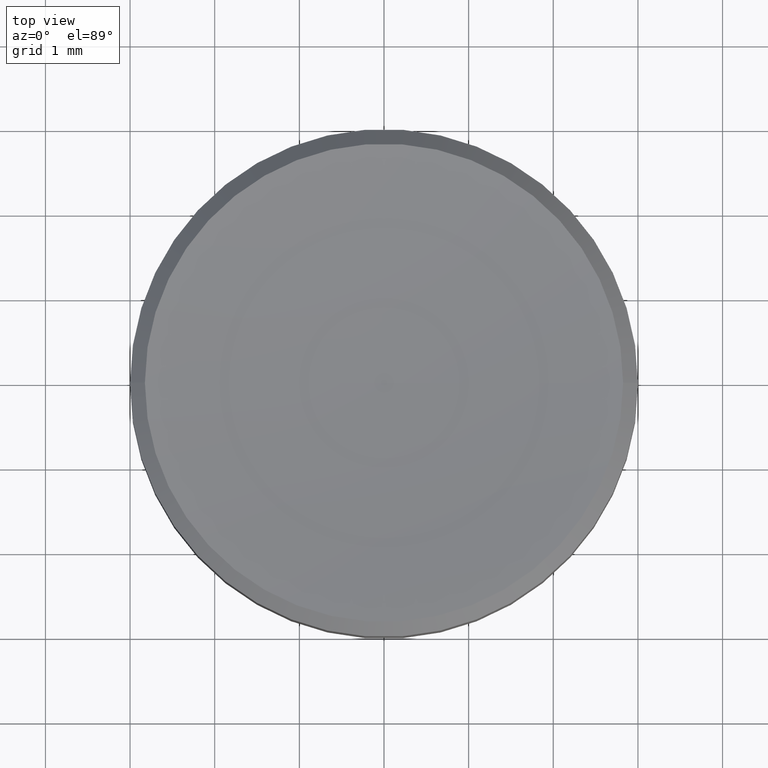
[diagram: clean part render]
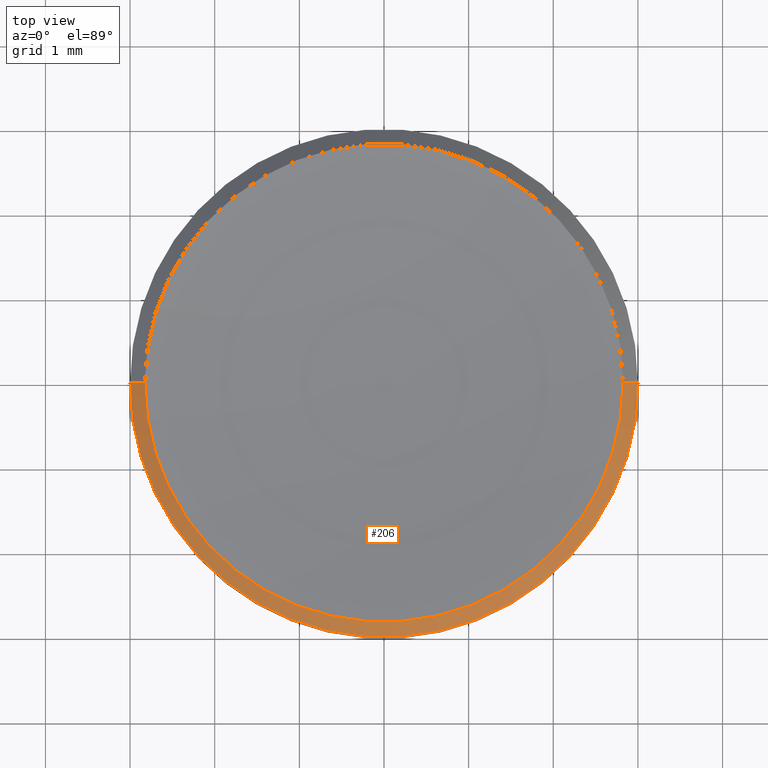
[diagram: same view with one face highlighted and labeled with its STEP entity id]
A machine part, top view. The second image highlights one B-rep face of the part: STEP entity #206.
In plain terms, the highlighted conical surface has half-angle 45 deg.
Its self-contained STEP definition (entity closure, byte-faithful):
#3 = AXIS2_PLACEMENT_3D ( 'NONE', #108, #99, #93 ) ;
#5 = CARTESIAN_POINT ( 'NONE',  ( -2.824988047808448144, 0.000000000000000000, 1.695011952191550986 ) ) ;
#16 = VECTOR ( 'NONE', #129, 1000.000000000000000 ) ;
#20 = AXIS2_PLACEMENT_3D ( 'NONE', #23, #169, #66 ) ;
#23 = CARTESIAN_POINT ( 'NONE',  ( 0.000000000000000000, 0.000000000000000000, 1.519999999999993578 ) ) ;
#24 = LINE ( 'NONE', #5, #73 ) ;
#51 = CARTESIAN_POINT ( 'NONE',  ( 2.824988047808473013, 0.000000000000000000, 1.695011952191558091 ) ) ;
#54 = CARTESIAN_POINT ( 'NONE',  ( -3.000000000000000000, 3.673940397442059868E-16, 1.519999999999993578 ) ) ;
#57 = VERTEX_POINT ( 'NONE', #193 ) ;
#58 = ORIENTED_EDGE ( 'NONE', *, *, #142, .F. ) ;
#62 = ORIENTED_EDGE ( 'NONE', *, *, #89, .F. ) ;
#66 = DIRECTION ( 'NONE',  ( -1.000000000000000000, 0.000000000000000000, 0.000000000000000000 ) ) ;
#73 = VECTOR ( 'NONE', #152, 1000.000000000000000 ) ;
#89 = EDGE_CURVE ( 'NONE', #121, #245, #140, .T. ) ;
#91 = DIRECTION ( 'NONE',  ( -1.000000000000000000, 0.000000000000000000, 0.000000000000000000 ) ) ;
#93 = DIRECTION ( 'NONE',  ( 1.000000000000000000, 0.000000000000000000, 0.000000000000000000 ) ) ;
#98 = CARTESIAN_POINT ( 'NONE',  ( 0.000000000000000000, 0.000000000000000000, 1.695011952191550986 ) ) ;
#99 = DIRECTION ( 'NONE',  ( -0.000000000000000000, -0.000000000000000000, 1.000000000000000000 ) ) ;
#106 = EDGE_CURVE ( 'NONE', #57, #245, #24, .T. ) ;
#108 = CARTESIAN_POINT ( 'NONE',  ( 0.000000000000000000, 0.000000000000000000, 1.695011952191558091 ) ) ;
#121 = VERTEX_POINT ( 'NONE', #150 ) ;
#122 = ORIENTED_EDGE ( 'NONE', *, *, #106, .T. ) ;
#129 = DIRECTION ( 'NONE',  ( 0.7071067811865361374, 8.659560562354792342E-17, -0.7071067811865588970 ) ) ;
#136 = EDGE_CURVE ( 'NONE', #225, #121, #192, .T. ) ;
#140 = CIRCLE ( 'NONE', #20, 3.000000000000000000 ) ;
#142 = EDGE_CURVE ( 'NONE', #57, #225, #242, .T. ) ;
#149 = CARTESIAN_POINT ( 'NONE',  ( 2.824988047808448144, 3.459612570378145558E-16, 1.695011952191550986 ) ) ;
#150 = CARTESIAN_POINT ( 'NONE',  ( 3.000000000000000000, 0.000000000000000000, 1.519999999999993578 ) ) ;
#152 = DIRECTION ( 'NONE',  ( -0.7071067811865361374, 0.000000000000000000, -0.7071067811865588970 ) ) ;
#156 = DIRECTION ( 'NONE',  ( 0.000000000000000000, 0.000000000000000000, -1.000000000000000000 ) ) ;
#166 = EDGE_LOOP ( 'NONE', ( #252, #58, #122, #62 ) ) ;
#169 = DIRECTION ( 'NONE',  ( 0.000000000000000000, 0.000000000000000000, -1.000000000000000000 ) ) ;
#185 = CONICAL_SURFACE ( 'NONE', #191, 2.824988047808448144, 0.7853981633974321808 ) ;
#191 = AXIS2_PLACEMENT_3D ( 'NONE', #98, #156, #91 ) ;
#192 = LINE ( 'NONE', #149, #16 ) ;
#193 = CARTESIAN_POINT ( 'NONE',  ( -2.824988047808473013, 3.459612570378175633E-16, 1.695011952191558091 ) ) ;
#202 = FACE_OUTER_BOUND ( 'NONE', #166, .T. ) ;
#206 = ADVANCED_FACE ( 'NONE', ( #202 ), #185, .T. ) ;
#225 = VERTEX_POINT ( 'NONE', #51 ) ;
#242 = CIRCLE ( 'NONE', #3, 2.824988047808446812 ) ;
#245 = VERTEX_POINT ( 'NONE', #54 ) ;
#252 = ORIENTED_EDGE ( 'NONE', *, *, #136, .F. ) ;